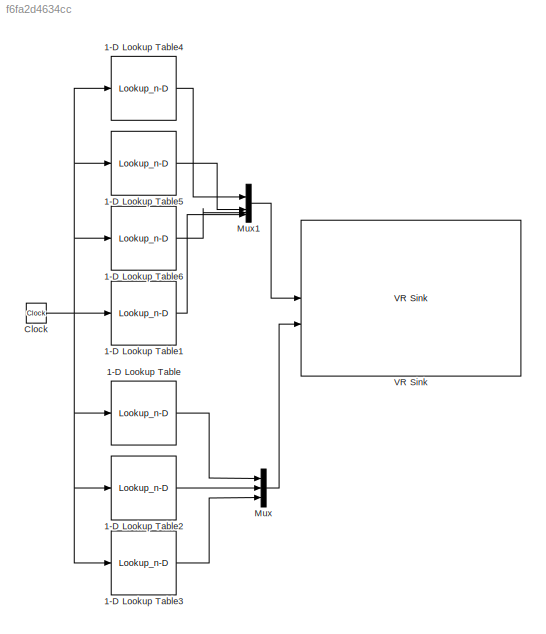
MODEL slx_f6fa2d4634cc
KIND model
CONFIG AbsTol = 1e-12
CONFIG EnableMultiTasking = off
CONFIG FixedStep = auto
CONFIG MaxStep = auto
CONFIG MinStep = auto
CONFIG RelTol = 1e-12
CONFIG SampleTimeConstraint = Unconstrained
CONFIG SolverName = FixedStepAuto
CONFIG StartTime = 0.0
CONFIG StopTime = sim_output(end, 1)
WORKSPACE source: mxarray member
WORKSPACE sim_output = [0 0.00134636555942 0.00807819335655 0.0417373323422 0.0699 0.1398 0.2097 0.2796 0.297291863104 0.314983726208 0.332522738086 0.3495 ... (7496 elements, 937x8)]
BLOCK [Lookup_n-D] 1-D Lookup Table
  BreakpointsForDimension1 = sim_output(:, 1)
  InputPortMap = u0
  InternalRulePriority = Speed
  NumberOfTableDimensions = 1
  RndMeth = Simplest
  Table = sim_output(:, 6)
BLOCK [Lookup_n-D] 1-D Lookup Table1
  BreakpointsForDimension1 = sim_output(:, 1)
  InputPortMap = u0
  InternalRulePriority = Speed
  NumberOfTableDimensions = 1
  RndMeth = Simplest
  Table = sim_output(:, 5)
BLOCK [Lookup_n-D] 1-D Lookup Table2
  BreakpointsForDimension1 = sim_output(:, 1)
  InputPortMap = u0
  InternalRulePriority = Speed
  NumberOfTableDimensions = 1
  RndMeth = Simplest
  Table = sim_output(:, 7)
BLOCK [Lookup_n-D] 1-D Lookup Table3
  BreakpointsForDimension1 = sim_output(:, 1)
  InputPortMap = u0
  InternalRulePriority = Speed
  NumberOfTableDimensions = 1
  RndMeth = Simplest
  Table = sim_output(:, 8)
BLOCK [Lookup_n-D] 1-D Lookup Table4
  BreakpointsForDimension1 = sim_output(:, 1)
  InputPortMap = u0
  InternalRulePriority = Speed
  NumberOfTableDimensions = 1
  RndMeth = Simplest
  Table = sim_output(:, 2)
BLOCK [Lookup_n-D] 1-D Lookup Table5
  BreakpointsForDimension1 = sim_output(:, 1)
  InputPortMap = u0
  InternalRulePriority = Speed
  NumberOfTableDimensions = 1
  RndMeth = Simplest
  Table = sim_output(:, 3)
BLOCK [Lookup_n-D] 1-D Lookup Table6
  BreakpointsForDimension1 = sim_output(:, 1)
  InputPortMap = u0
  InternalRulePriority = Speed
  NumberOfTableDimensions = 1
  RndMeth = Simplest
  Table = sim_output(:, 4)
BLOCK [Clock] Clock
BLOCK [Mux] Mux
  DisplayOption = bar
  Inputs = 3
BLOCK [Mux] Mux1
  DisplayOption = bar
BLOCK [Reference] VR Sink  REF=vrlib/VR Sink
  InstantiateOnLoad = on
  SourceBlock = vrlib/VR Sink
  SourceType = Virtual Reality Sink
LINE 1-D Lookup Table1:1 -> Mux1:4
LINE 1-D Lookup Table2:1 -> Mux:2
LINE 1-D Lookup Table3:1 -> Mux:3
LINE 1-D Lookup Table4:1 -> Mux1:1
LINE 1-D Lookup Table5:1 -> Mux1:2
LINE 1-D Lookup Table6:1 -> Mux1:3
LINE 1-D Lookup Table:1 -> Mux:1
NET Clock:1 -> 1-D Lookup Table1:1, 1-D Lookup Table2:1, 1-D Lookup Table3:1, 1-D Lookup Table4:1, 1-D Lookup Table5:1, 1-D Lookup Table6:1, 1-D Lookup Table:1
LINE Mux1:1 -> VR Sink:1
LINE Mux:1 -> VR Sink:2
note: NET lines group one-source signal fan-out (src -> all destinations, sorted); 1:1 wires keep LINE
